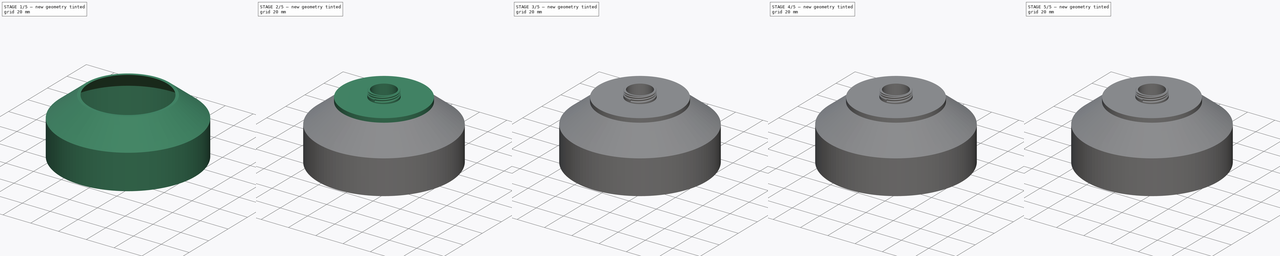
[diagram: build sequence overview — one tinted view per stage of 5, left to right]
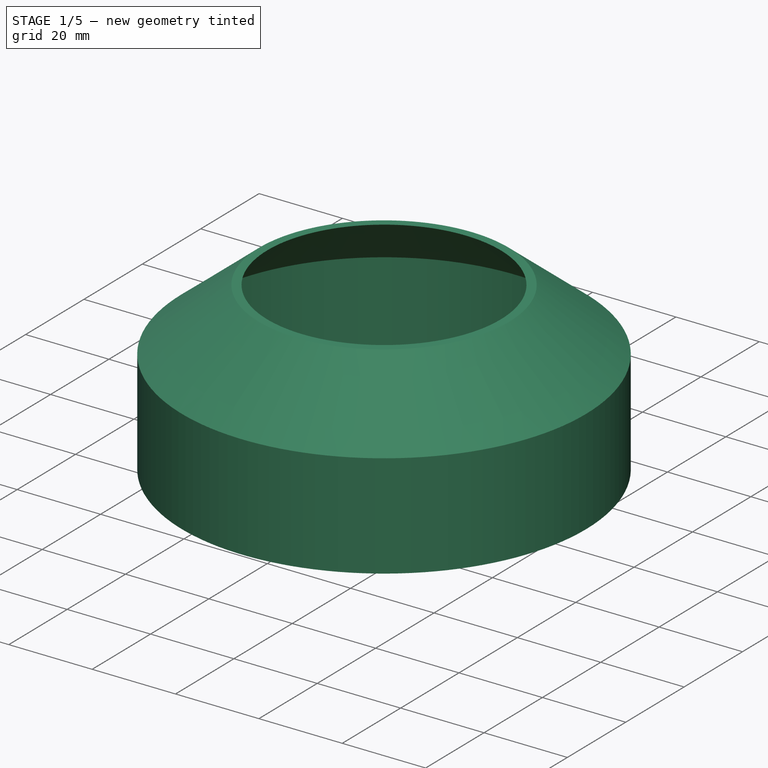
[diagram: stage 1 of 5 — iso view after this stage's code; geometry added in this stage tinted green]
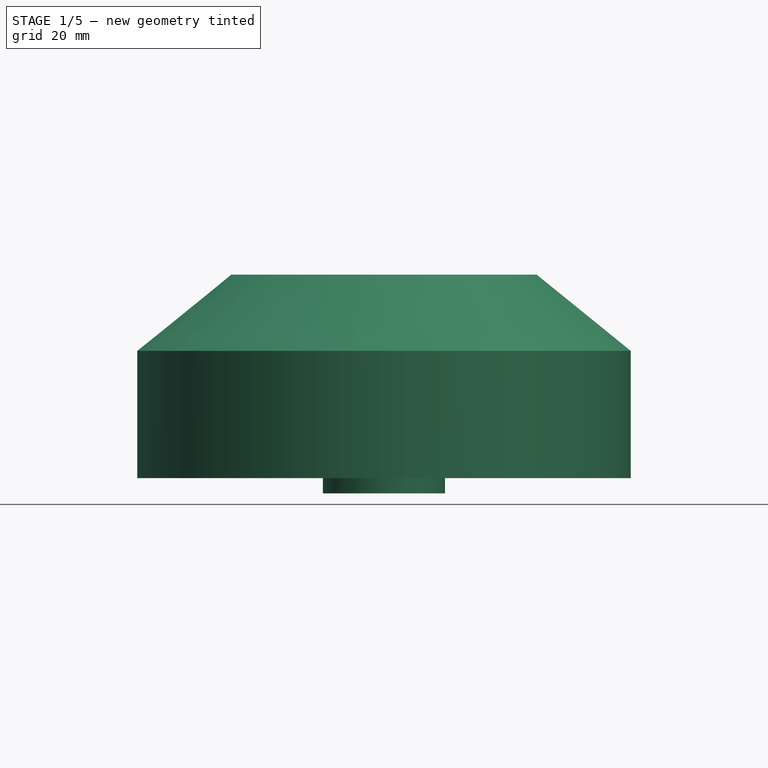
[diagram: stage 1 of 5 — front view after this stage's code; geometry added in this stage tinted green]
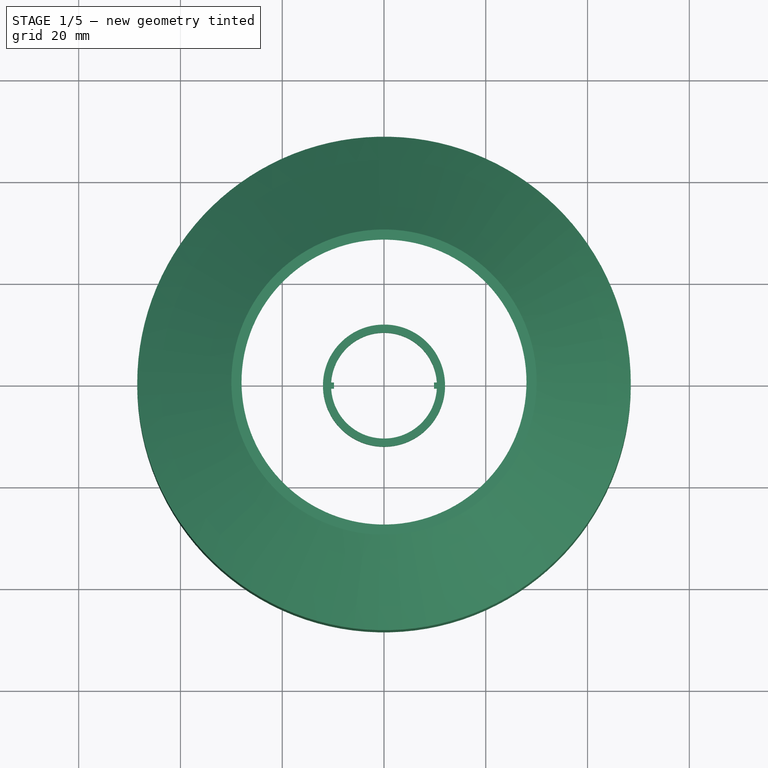
[diagram: stage 1 of 5 — top view after this stage's code; geometry added in this stage tinted green]
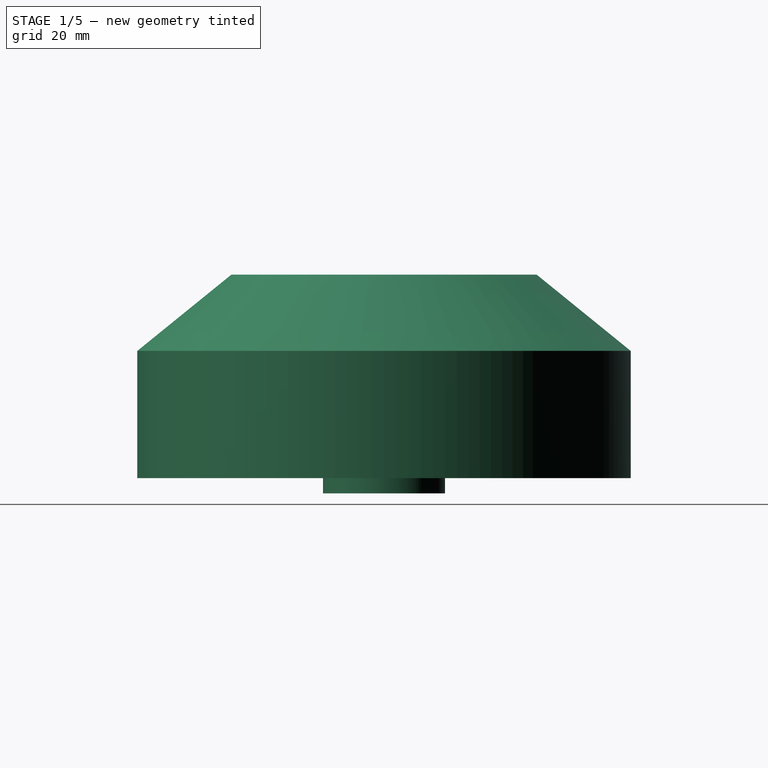
[diagram: stage 1 of 5 — right view after this stage's code; geometry added in this stage tinted green]
FCSTD DOCUMENT  (FreeCAD 0.19R24267 +99 (Git))
Label: CarbonCanister
License: All rights reserved
LicenseURL: http://en.wikipedia.org/wiki/All_rights_reserved
objects: Sketcher::SketchObject×19, PartDesign::Pocket×8, PartDesign::Pad×6, PartDesign::PolarPattern×6, PartDesign::Body×3, PartDesign::Chamfer×1, PartDesign::AdditiveLoft×1, PartDesign::SubtractiveLoft×1, PartDesign::SubtractiveHelix×1
note: 64 computed .brp shape members not serialized (recipe doc carries the construction recipe); baked Part::Feature solids carry a one-line shape summary decoded from their .brp

FEATURE [PartDesign::Body] Body
  Group = -> [Sketch,Pad,Sketch001,Pocket,Sketch003,Pocket001,PolarPattern,Sketch004,Pocket002,PolarPattern001,Sketch005,Pocket003,PolarPattern002,Sketch006,Pocket004,PolarPattern003,Sketch007,Pocket005,PolarPattern004,Sketch008,Pocket006,Chamfer]
  Origin = -> Origin
  Tip = -> Chamfer
FEATURE [Sketcher::SketchObject] Sketch009
  FullyConstrained = true
  MapMode = 5
  Support = -> [XY_Plane001]
  sketch-geometry (2):
    g0: Circle CenterX=0 CenterY=0 CenterZ=0 NormalX=0 NormalY=0 NormalZ=1 AngleXU=0 Radius=45.5
    g1: Circle CenterX=0 CenterY=0 CenterZ=0 NormalX=0 NormalY=0 NormalZ=1 AngleXU=0 Radius=48.5
  constraints (4):
    c: Coincident(g0,g-1)
    c: Radius(g0) = 45.5
    c: Radius(g1) = 48.5
    c: Coincident(g1,g0)
FEATURE [PartDesign::Pad] Pad001
  Direction = (1,1,1)
  Length = 25
  Length2 = 100
  Profile = -> Sketch009
  Type = 0
FEATURE [Sketcher::SketchObject] Sketch010
  FullyConstrained = true
  MapMode = 5
  Placement = pos=(0,0,25) rot=(0,0,1;0rad)
  Support = -> [Pad001]
  sketch-geometry (1):
    g0: Circle CenterX=0 CenterY=0 CenterZ=0 NormalX=0 NormalY=0 NormalZ=1 AngleXU=0 Radius=48.5
  constraints (2):
    c: Coincident(g0,g-1)
    c: Radius(g0) = 48.5
FEATURE [Sketcher::SketchObject] Sketch011
  AttachmentOffset = pos=(0,0,40) rot=(0,0,1;0rad)
  FullyConstrained = true
  MapMode = 5
  Placement = pos=(0,0,40) rot=(0,0,1;0rad)
  Support = -> [XY_Plane001]
  sketch-geometry (1):
    g0: Circle CenterX=0 CenterY=0 CenterZ=0 NormalX=0 NormalY=0 NormalZ=1 AngleXU=0 Radius=30
  constraints (2):
    c: Coincident(g0,g-1)
    c: Radius(g0) = 30
FEATURE [PartDesign::AdditiveLoft] AdditiveLoft
  BaseFeature = -> Pad001
  Closed = false
  Profile = -> Sketch010
  Ruled = false
  Sections = -> [Sketch011]
FEATURE [Sketcher::SketchObject] Sketch014
  ExternalGeometry = -> [AdditiveLoft]
  FullyConstrained = true
  MapMode = 5
  Placement = pos=(0,0,40) rot=(0,0,1;0rad)
  Support = -> [AdditiveLoft]
  sketch-geometry (1):
    g0: Circle CenterX=0 CenterY=0 CenterZ=0 NormalX=0 NormalY=0 NormalZ=1 AngleXU=0 Radius=28
  constraints (3):
    c: Coincident(g0,g-1)
    c: Radius(g-3) = 30
    c: Radius(g0) = 28
FEATURE [Sketcher::SketchObject] Sketch015
  FullyConstrained = true
  MapMode = 5
  Placement = pos=(0,0,25) rot=(1,0,0;3.14159rad)
  Support = -> [AdditiveLoft]
  sketch-geometry (1):
    g0: Circle CenterX=0 CenterY=0 CenterZ=0 NormalX=0 NormalY=0 NormalZ=1 AngleXU=0 Radius=45
  constraints (2):
    c: Coincident(g0,g-1)
    c: Radius(g0) = 45
FEATURE [PartDesign::SubtractiveLoft] SubtractiveLoft
  BaseFeature = -> AdditiveLoft
  Closed = false
  Profile = -> Sketch014
  Ruled = false
  Sections = -> [Sketch015]
FEATURE [PartDesign::Body] Body001
  Group = -> [Sketch009,Pad001,Sketch010,Sketch011,AdditiveLoft,Sketch014,Sketch015,SubtractiveLoft,Sketch016,Pad002,Sketch017,Pad003,Sketch018,SubtractiveHelix,PolarPattern005,Sketch019,Pocket007]
  Origin = -> Origin001
  Tip = -> Pocket007
FEATURE [Sketcher::SketchObject] Sketch020
  FullyConstrained = true
  MapMode = 5
  Support = -> [XY_Plane002]
  sketch-geometry (9):
    g0: LineSegment StartX=-10.3818 StartY=0.615 StartZ=0 EndX=-9.8318 EndY=0.615 EndZ=0
    g1: LineSegment StartX=-9.8318 StartY=0.615 StartZ=0 EndX=-9.83179 EndY=-0.615 EndZ=0
    g2: LineSegment StartX=-9.83179 StartY=-0.615 StartZ=0 EndX=-10.3818 EndY=-0.615 EndZ=0
    g3: LineSegment StartX=10.3818 StartY=0.615 StartZ=0 EndX=9.8318 EndY=0.615 EndZ=0
    g4: LineSegment StartX=9.8318 StartY=0.615 StartZ=0 EndX=9.8318 EndY=-0.615 EndZ=0
    g5: LineSegment StartX=9.8318 StartY=-0.615 StartZ=0 EndX=10.3818 EndY=-0.615 EndZ=0
    g6: ArcOfCircle CenterX=0 CenterY=0 CenterZ=0 NormalX=0 NormalY=0 NormalZ=1 AngleXU=0 Radius=10.4 StartAngle=0.0591691 EndAngle=3.08242
    g7: ArcOfCircle CenterX=0 CenterY=0 CenterZ=0 NormalX=0 NormalY=0 NormalZ=1 AngleXU=0 Radius=10.4 StartAngle=3.20076 EndAngle=6.22402
    g8: Circle CenterX=0 CenterY=0 CenterZ=0 NormalX=0 NormalY=0 NormalZ=1 AngleXU=0 Radius=12
  constraints (25):
    c: Coincident(g0,g1)
    c: Coincident(g1,g2)
    c: Horizontal(g2)
    c: Horizontal(g3)
    c: Coincident(g3,g4)
    c: Coincident(g4,g5)
    c: Horizontal(g0)
    c: Horizontal(g3,g0)
    c: Horizontal(g1,g4)
    c: Symmetric(g3,g4,g-1)
    c: Coincident(g6,g-1)
    c: Coincident(g6,g0)
    c: Coincident(g6,g3)
    c: Coincident(g7,g6)
    c: Coincident(g7,g2)
    c: Coincident(g7,g5)
    c: Equal(g1,g4)
    c: Horizontal(g5)
    c: Equal(g6,g7)
    c: Radius(g6) = 10.4
    c: Coincident(g8,g6)
    c: Radius(g8) = 12
    c: Distance(g3) = 0.55
    c: Distance(g4) = 1.23
    c: Equal(g5,g0)
FEATURE [PartDesign::Pad] Pad004
  Direction = (1,1,1)
  Length = 0.4
  Length2 = 100
  Profile = -> Sketch020
  Type = 0
FEATURE [Sketcher::SketchObject] Sketch021
  FullyConstrained = true
  MapMode = 5
  Placement = pos=(0,0,0) rot=(1,0,0;3.14159rad)
  Support = -> [Pad004]
  sketch-geometry (2):
    g0: Circle CenterX=0 CenterY=0 CenterZ=0 NormalX=0 NormalY=0 NormalZ=1 AngleXU=0 Radius=10.4
    g1: Circle CenterX=0 CenterY=0 CenterZ=0 NormalX=0 NormalY=0 NormalZ=1 AngleXU=0 Radius=12
  constraints (4):
    c: Coincident(g0,g-1)
    c: Coincident(g1,g0)
    c: Radius(g1) = 12
    c: Radius(g0) = 10.4
FEATURE [PartDesign::Pad] Pad005
  BaseFeature = -> Pad004
  Direction = (1,1,1)
  Length = 3
  Length2 = 100
  Profile = -> Sketch021
  Type = 0
FEATURE [PartDesign::Body] Body002
  Group = -> [Sketch020,Pad004,Sketch021,Pad005]
  Origin = -> Origin002
  Tip = -> Pad005
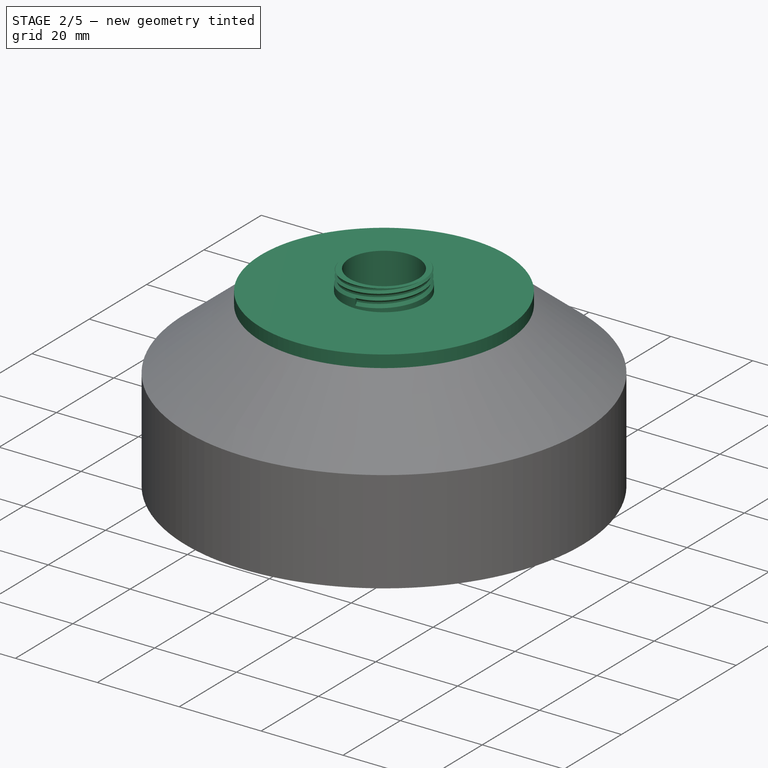
[diagram: stage 2 of 5 — iso view after this stage's code; geometry added in this stage tinted green]
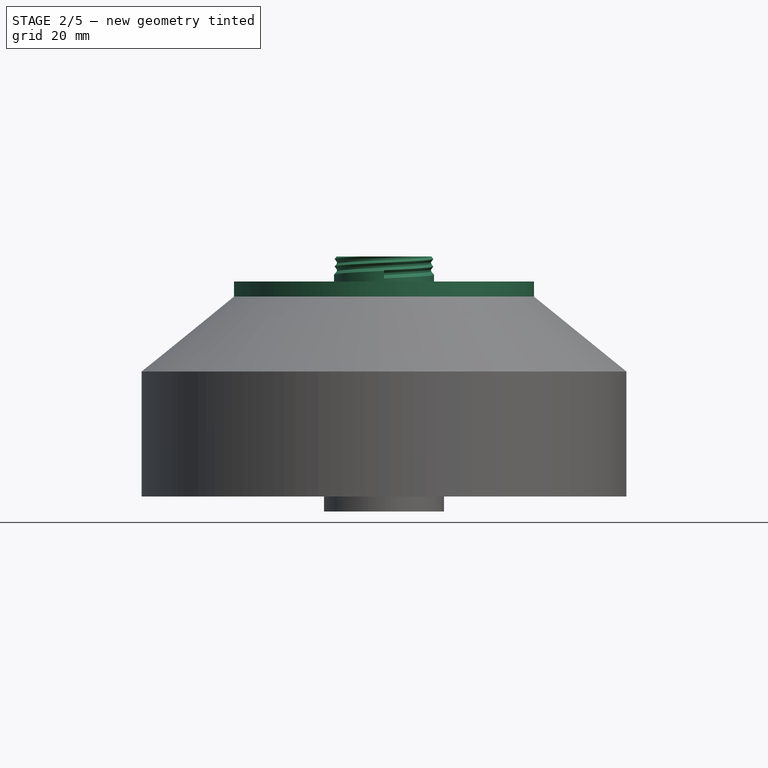
[diagram: stage 2 of 5 — front view after this stage's code; geometry added in this stage tinted green]
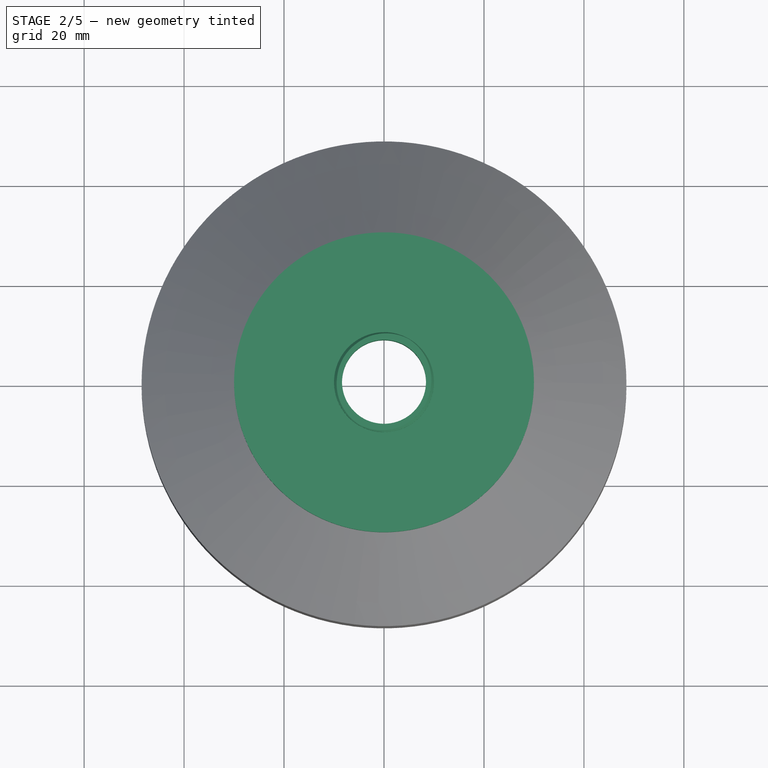
[diagram: stage 2 of 5 — top view after this stage's code; geometry added in this stage tinted green]
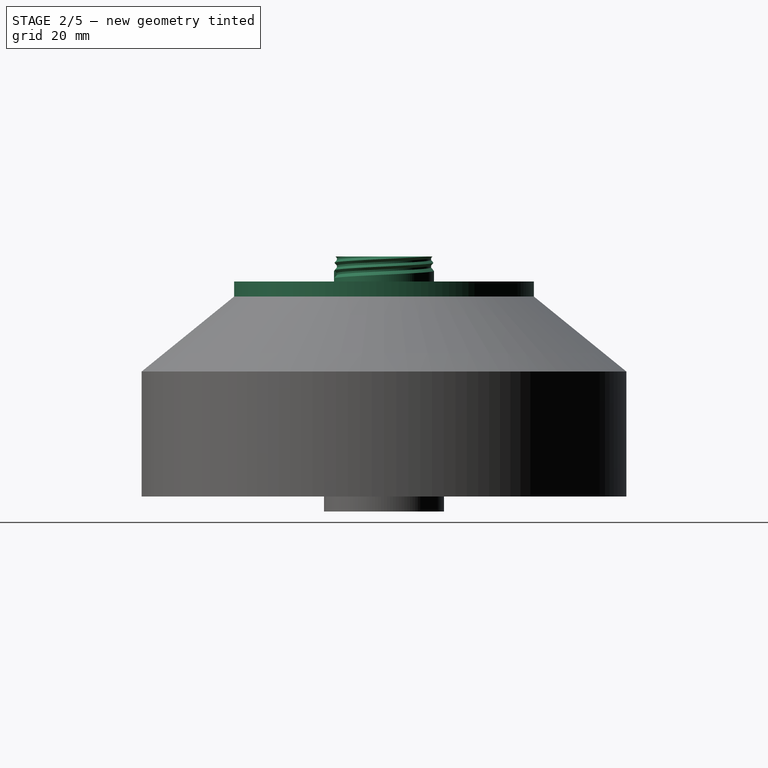
[diagram: stage 2 of 5 — right view after this stage's code; geometry added in this stage tinted green]
FEATURE [Sketcher::SketchObject] Sketch016
  FullyConstrained = true
  MapMode = 5
  Placement = pos=(0,0,40) rot=(0,0,1;0rad)
  Support = -> [SubtractiveLoft]
  sketch-geometry (1):
    g0: Circle CenterX=0 CenterY=0 CenterZ=0 NormalX=0 NormalY=0 NormalZ=1 AngleXU=0 Radius=30
  constraints (2):
    c: Coincident(g0,g-1)
    c: Radius(g0) = 30
FEATURE [PartDesign::Pad] Pad002
  BaseFeature = -> SubtractiveLoft
  Direction = (1,1,1)
  Length = 3
  Length2 = 100
  Profile = -> Sketch016
  Type = 0
FEATURE [Sketcher::SketchObject] Sketch017
  FullyConstrained = true
  MapMode = 5
  Placement = pos=(0,0,43) rot=(0,0,1;0rad)
  Support = -> [Pad002]
  sketch-geometry (1):
    g0: Circle CenterX=0 CenterY=0 CenterZ=0 NormalX=0 NormalY=0 NormalZ=1 AngleXU=0 Radius=10
  constraints (2):
    c: Coincident(g0,g-1)
    c: Radius(g0) = 10
FEATURE [PartDesign::Pad] Pad003
  BaseFeature = -> Pad002
  Direction = (1,1,1)
  Length = 5
  Length2 = 100
  Profile = -> Sketch017
  Type = 0
FEATURE [Sketcher::SketchObject] Sketch018
  ExternalGeometry = -> [Pad003]
  FullyConstrained = true
  MapMode = 5
  Placement = pos=(0,0,0) rot=(0.57735,0.57735,0.57735;2.0944rad)
  Support = -> [YZ_Plane001]
  sketch-geometry (4):
    g0: LineSegment StartX=10.1 StartY=45.5 StartZ=0 EndX=9.42872 EndY=44.7 EndZ=0
    g1: LineSegment StartX=9.42872 StartY=44.7 StartZ=0 EndX=9.42872 EndY=44.3 EndZ=0
    g2: LineSegment StartX=9.42872 StartY=44.3 StartZ=0 EndX=10.1 EndY=43.5 EndZ=0
    g3: LineSegment StartX=10.1 StartY=43.5 StartZ=0 EndX=10.1 EndY=45.5 EndZ=0
  constraints (12):
    c: Coincident(g0,g1)
    c: Vertical(g1)
    c: Coincident(g1,g2)
    c: Vertical(g3)
    c: Angle(g0,g3) = 0.698132
    c: Angle(g3,g2) = 0.698132
    c: Distance(g1) = 0.4
    c: Distance(g3) = 2
    c: Coincident(g0,g3)
    c: Coincident(g2,g3)
    c: DistanceX(g-3,g2) = 0.1
    c: DistanceY(g-3,g2) = 0.5
FEATURE [PartDesign::SubtractiveHelix] SubtractiveHelix
  Angle = 0
  Axis = (-2e-16,3e-16,1)
  Base = (0,0,0)
  BaseFeature = -> Pad003
  HasBeenEdited = true
  Height = 5
  LeftHanded = false
  Mode = 0
  Outside = false
  Pitch = 3
  Profile = -> Sketch018
  ReferenceAxis = -> Sketch018 [V_Axis]
  Turns = 1.66667
FEATURE [PartDesign::PolarPattern] PolarPattern005
  Angle = 360
  Axis = -> Z_Axis001
  BaseFeature = -> SubtractiveHelix
  Occurrences = 2
  Originals = -> [SubtractiveHelix]
FEATURE [Sketcher::SketchObject] Sketch019
  FullyConstrained = true
  MapMode = 5
  Placement = pos=(0,0,48) rot=(0,0,1;0rad)
  Support = -> [PolarPattern005]
  sketch-geometry (1):
    g0: Circle CenterX=0 CenterY=0 CenterZ=0 NormalX=0 NormalY=0 NormalZ=1 AngleXU=0 Radius=8.4
  constraints (2):
    c: Coincident(g0,g-1)
    c: Radius(g0) = 8.4
FEATURE [PartDesign::Pocket] Pocket007
  BaseFeature = -> PolarPattern005
  Length = 12
  Length2 = 100
  Profile = -> Sketch019
  Type = 0
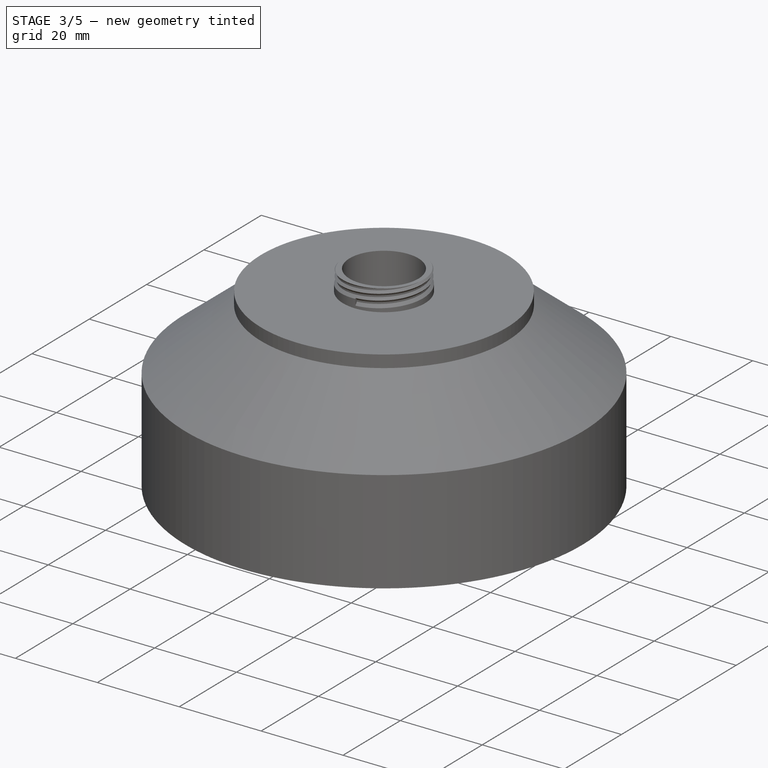
[diagram: stage 3 of 5 — iso view after this stage's code; geometry added in this stage tinted green]
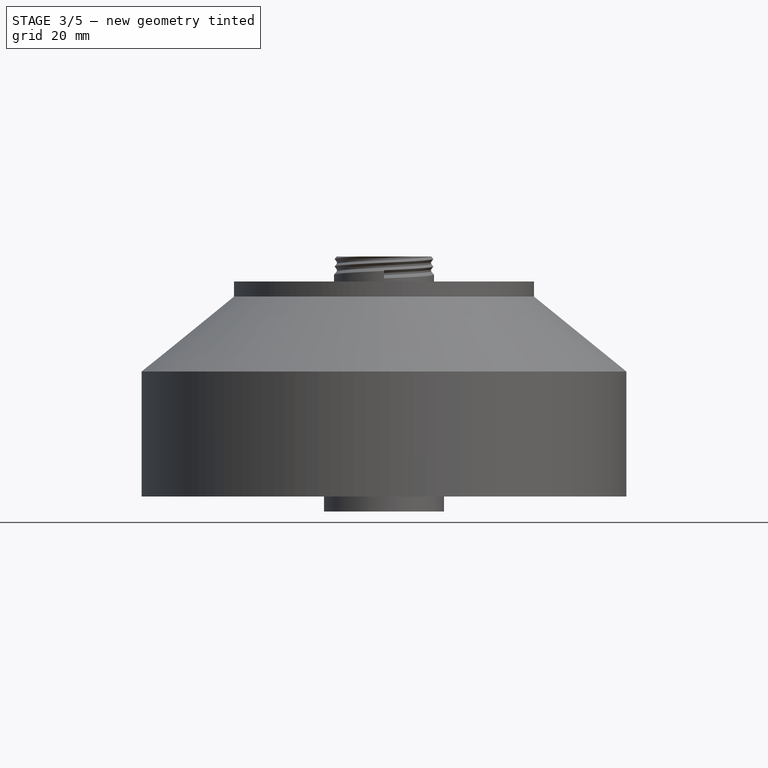
[diagram: stage 3 of 5 — front view after this stage's code; geometry added in this stage tinted green]
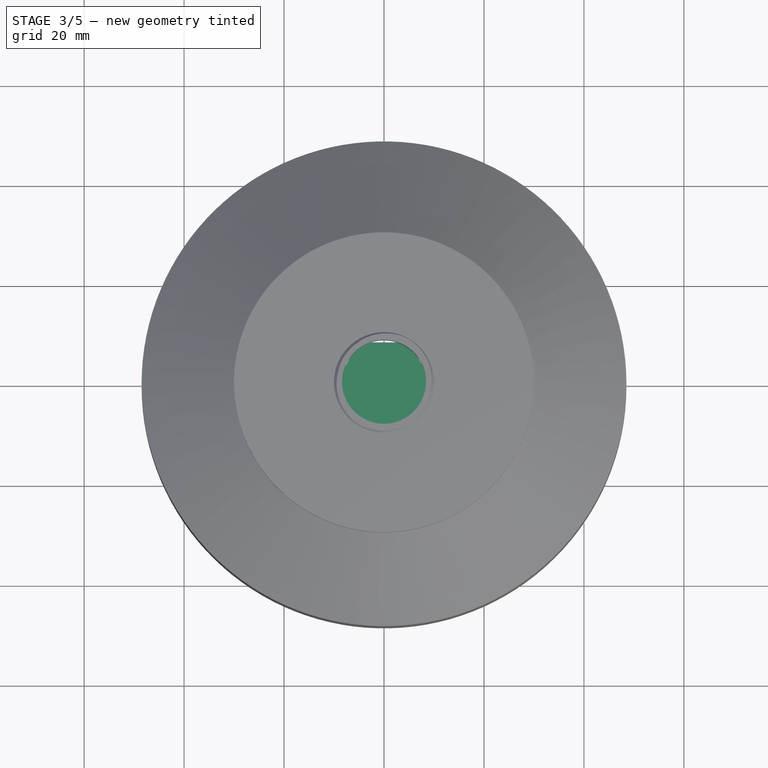
[diagram: stage 3 of 5 — top view after this stage's code; geometry added in this stage tinted green]
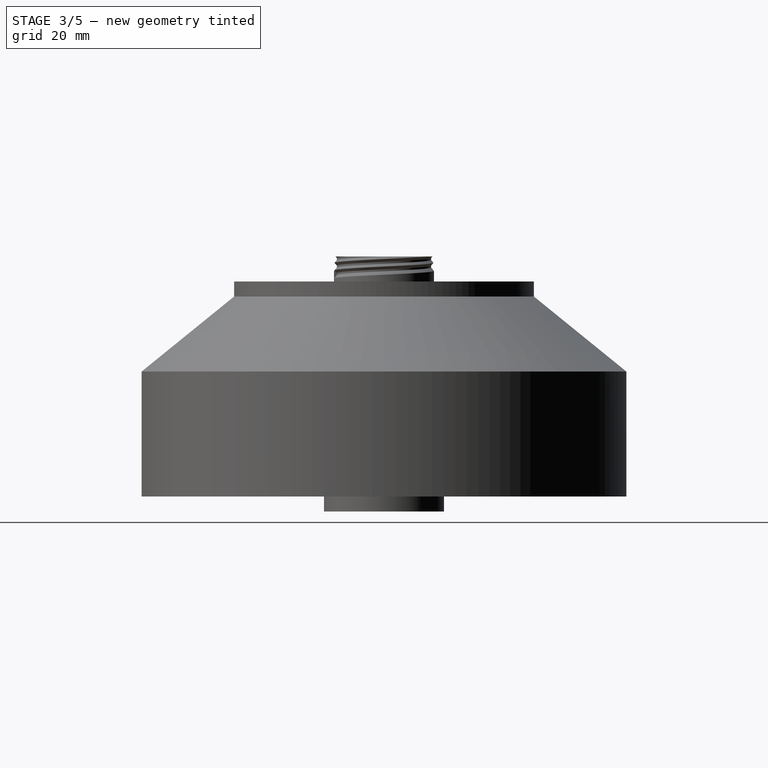
[diagram: stage 3 of 5 — right view after this stage's code; geometry added in this stage tinted green]
FEATURE [Sketcher::SketchObject] Sketch
  FullyConstrained = true
  MapMode = 5
  Support = -> [XY_Plane]
  sketch-geometry (1):
    g0: Circle CenterX=0 CenterY=0 CenterZ=0 NormalX=0 NormalY=0 NormalZ=1 AngleXU=0 Radius=45
  constraints (2):
    c: Coincident(g0,g-1)
    c: Radius(g0) = 45
FEATURE [PartDesign::Pad] Pad
  Direction = (1,1,1)
  Length = 20
  Length2 = 100
  Profile = -> Sketch
  Type = 0
FEATURE [Sketcher::SketchObject] Sketch001
  FullyConstrained = true
  MapMode = 5
  Placement = pos=(0,0,20) rot=(0,0,1;0rad)
  Support = -> [Pad]
  sketch-geometry (1):
    g0: Circle CenterX=0 CenterY=0 CenterZ=0 NormalX=0 NormalY=0 NormalZ=1 AngleXU=0 Radius=42
  constraints (2):
    c: Coincident(g0,g-1)
    c: Radius(g0) = 42
FEATURE [PartDesign::Pocket] Pocket
  BaseFeature = -> Pad
  Length = 17
  Length2 = 100
  Profile = -> Sketch001
  Type = 0
FEATURE [Sketcher::SketchObject] Sketch003
  FullyConstrained = true
  MapMode = 5
  Placement = pos=(0,0,3) rot=(0,0,1;0rad)
  Support = -> [Pocket]
  sketch-geometry (14):
    g0: LineSegment StartX=11.2583 StartY=-6.5 StartZ=0 EndX=11.2583 EndY=6.5 EndZ=0
    g1: LineSegment StartX=11.2583 StartY=6.5 StartZ=0 EndX=0 EndY=13 EndZ=0
    g2: LineSegment StartX=0 StartY=13 StartZ=0 EndX=-11.2583 EndY=6.5 EndZ=0
    g3: LineSegment StartX=-11.2583 StartY=6.5 StartZ=0 EndX=-11.2583 EndY=-6.5 EndZ=0
    g4: LineSegment StartX=-11.2583 StartY=-6.5 StartZ=0 EndX=0 EndY=-13 EndZ=0
    g5: LineSegment StartX=4e-16 StartY=-13 StartZ=0 EndX=11.2583 EndY=-6.5 EndZ=0
    g6: Circle CenterX=0 CenterY=0 CenterZ=0 NormalX=0 NormalY=0 NormalZ=1 AngleXU=0 Radius=13
    g7: LineSegment StartX=-6.25833 StartY=6.5 StartZ=0 EndX=-8.75833 EndY=10.8301 EndZ=0
    g8: LineSegment StartX=-8.75833 StartY=10.8301 StartZ=0 EndX=-13.7583 EndY=10.8301 EndZ=0
    g9: LineSegment StartX=-13.7583 StartY=10.8301 StartZ=0 EndX=-16.2583 EndY=6.5 EndZ=0
    g10: LineSegment StartX=-16.2583 StartY=6.5 StartZ=0 EndX=-13.7583 EndY=2.16987 EndZ=0
    g11: LineSegment StartX=-13.7583 StartY=2.16987 StartZ=0 EndX=-8.75833 EndY=2.16987 EndZ=0
    g12: LineSegment StartX=-8.75833 StartY=2.16987 StartZ=0 EndX=-6.25833 EndY=6.5 EndZ=0
    g13: Circle CenterX=-11.2583 CenterY=6.5 CenterZ=0 NormalX=0 NormalY=0 NormalZ=1 AngleXU=0 Radius=5
  constraints (32):
    c: Coincident(g0,g1)
    c: Coincident(g1,g2)
    c: Coincident(g2,g3)
    c: Coincident(g3,g4)
    c: Coincident(g4,g5)
    c: Coincident(g5,g0)
    c: Equal(g0, g1-g5) x5
    c: PointOnObject(g0,g6)
    c: PointOnObject(g1,g6)
    c: PointOnObject(g2,g6)
    c: PointOnObject(g3,g6)
    c: PointOnObject(g4,g6)
    c: PointOnObject(g5,g6)
    c: Coincident(g6,g-1)
    c: Vertical(g0)
    c: Coincident(g7,g8)
    c: Coincident(g8,g9)
    c: Coincident(g9,g10)
    c: Coincident(g10,g11)
    c: Coincident(g11,g12)
    c: Coincident(g12,g7)
    c: Equal(g7, g8-g12) x5
    c: PointOnObject(g7,g13)
    c: PointOnObject(g8,g13)
    c: PointOnObject(g9,g13)
    c: PointOnObject(g10,g13)
    c: PointOnObject(g11,g13)
    c: PointOnObject(g12,g13)
    c: Coincident(g13,g2)
    c: Horizontal(g8)
    c: Distance(g8) = 5
    c: Distance(g2) = 13
FEATURE [PartDesign::Pocket] Pocket001
  BaseFeature = -> Pocket
  Length = 5
  Length2 = 100
  Profile = -> Sketch003
  Type = 0
FEATURE [PartDesign::PolarPattern] PolarPattern
  Angle = 360
  Axis = -> Sketch003 [N_Axis]
  BaseFeature = -> Pocket001
  Occurrences = 6
  Originals = -> [Pocket001]
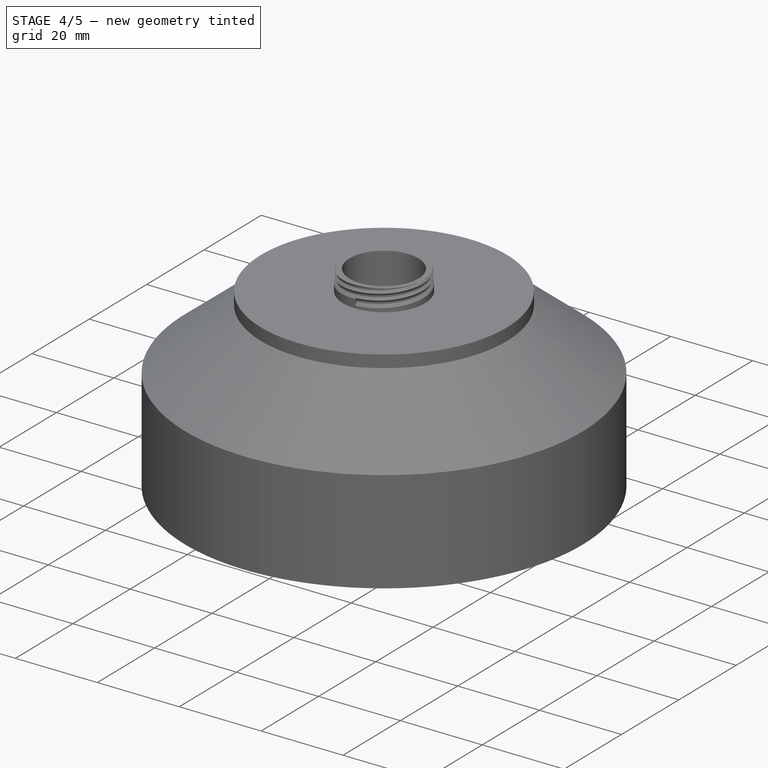
[diagram: stage 4 of 5 — iso view after this stage's code; geometry added in this stage tinted green]
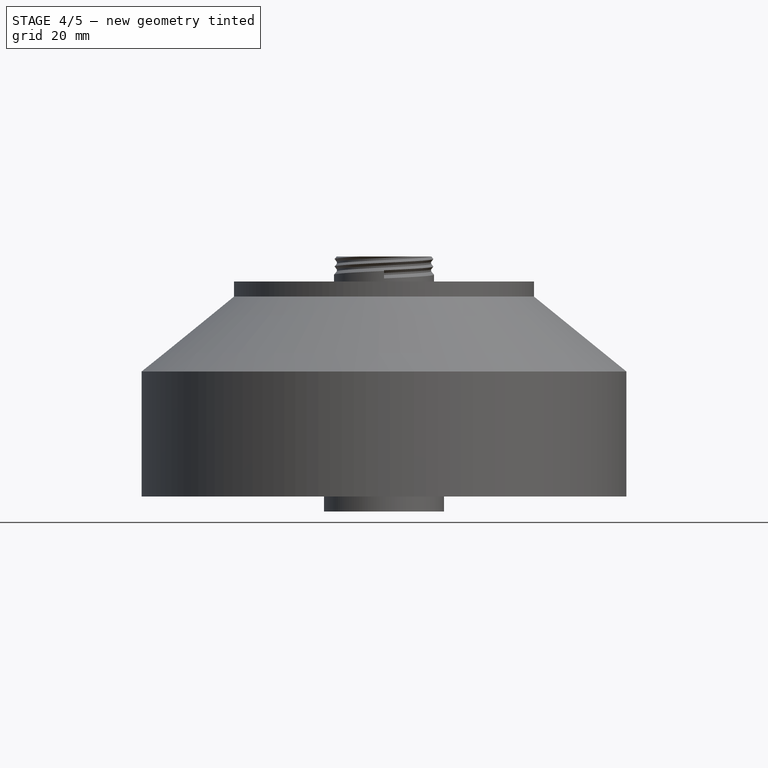
[diagram: stage 4 of 5 — front view after this stage's code; geometry added in this stage tinted green]
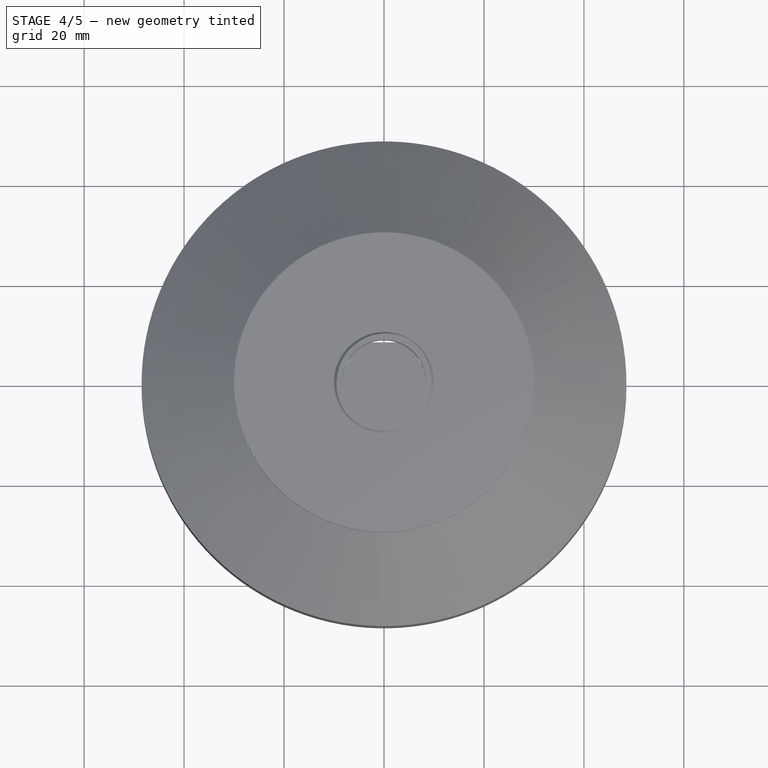
[diagram: stage 4 of 5 — top view after this stage's code; geometry added in this stage tinted green]
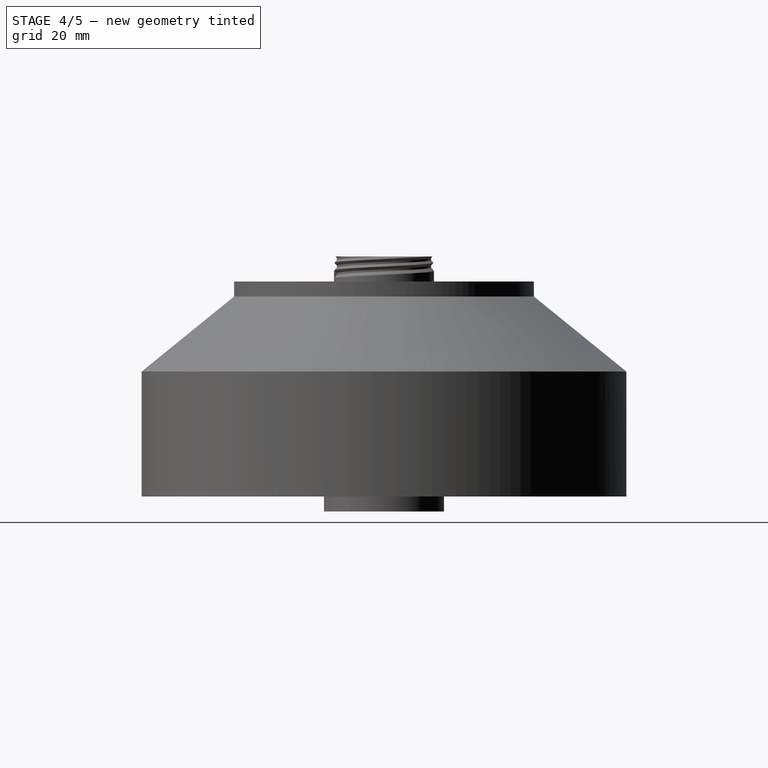
[diagram: stage 4 of 5 — right view after this stage's code; geometry added in this stage tinted green]
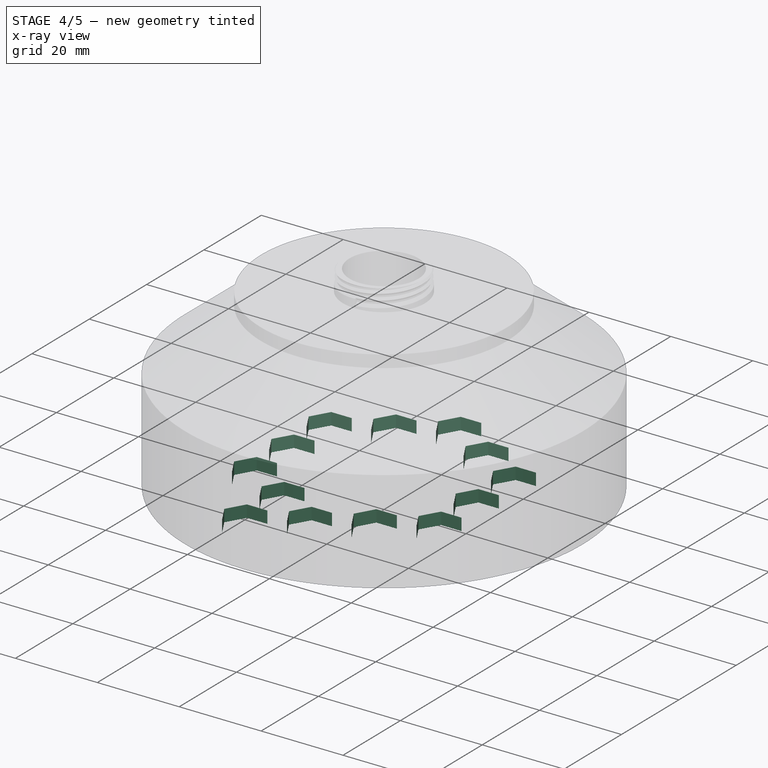
[diagram: stage 4 of 5 — x-ray composite at the iso view; earlier geometry ghosted, this stage's added geometry solid]
FEATURE [Sketcher::SketchObject] Sketch004
  ExternalGeometry = -> [PolarPattern]
  FullyConstrained = true
  MapMode = 5
  Placement = pos=(0,0,3) rot=(0,0,1;0rad)
  Support = -> [PolarPattern]
  sketch-geometry (10):
    g0: LineSegment StartX=13.7583 StartY=-23.8301 StartZ=0 EndX=16.2583 EndY=-19.5 EndZ=0
    g1: LineSegment StartX=16.2583 StartY=-19.5 StartZ=0 EndX=13.7583 EndY=-15.1699 EndZ=0
    g2: LineSegment StartX=13.7583 StartY=-15.1699 StartZ=0 EndX=8.75833 EndY=-15.1699 EndZ=0
    g3: LineSegment StartX=8.75833 StartY=-15.1699 StartZ=0 EndX=6.25833 EndY=-19.5 EndZ=0
    g4: LineSegment StartX=6.25833 StartY=-19.5 StartZ=0 EndX=8.75833 EndY=-23.8301 EndZ=0
    g5: LineSegment StartX=8.75833 StartY=-23.8301 StartZ=0 EndX=13.7583 EndY=-23.8301 EndZ=0
    g6: Circle CenterX=11.2583 CenterY=-19.5 CenterZ=0 NormalX=0 NormalY=0 NormalZ=1 AngleXU=0 Radius=5
    g7: LineSegment StartX=8.75833 StartY=-10.8301 StartZ=0 EndX=5 EndY=-13 EndZ=0
    g8: LineSegment StartX=8.75833 StartY=-10.8301 StartZ=0 EndX=8.75833 EndY=-15.1699 EndZ=0
    g9: LineSegment StartX=8.75833 StartY=-15.1699 StartZ=0 EndX=5 EndY=-13 EndZ=0
  constraints (23):
    c: Coincident(g0,g1)
    c: Coincident(g1,g2)
    c: Coincident(g2,g3)
    c: Coincident(g3,g4)
    c: Coincident(g4,g5)
    c: Coincident(g5,g0)
    c: Equal(g0, g1-g5) x5
    c: PointOnObject(g0,g6)
    c: PointOnObject(g1,g6)
    c: PointOnObject(g2,g6)
    c: PointOnObject(g3,g6)
    c: PointOnObject(g4,g6)
    c: PointOnObject(g5,g6)
    c: Horizontal(g2)
    c: Equal(g-3,g2)
    c: Coincident(g7,g-3)
    c: Coincident(g7,g-4)
    c: Coincident(g8,g7)
    c: Coincident(g8,g2)
    c: Coincident(g9,g7)
    c: Equal(g7,g8)
    c: Equal(g7,g9)
    c: Coincident(g2,g9)
FEATURE [PartDesign::Pocket] Pocket002
  BaseFeature = -> PolarPattern
  Length = 5
  Length2 = 100
  Profile = -> Sketch004
  Type = 0
FEATURE [PartDesign::PolarPattern] PolarPattern001
  Angle = 360
  Axis = -> Sketch004 [N_Axis]
  BaseFeature = -> Pocket002
  Occurrences = 6
  Originals = -> [Pocket002]
FEATURE [Sketcher::SketchObject] Sketch005
  ExternalGeometry = -> [PolarPattern001]
  FullyConstrained = true
  MapMode = 5
  Placement = pos=(0,0,3) rot=(0,0,1;0rad)
  Support = -> [PolarPattern001]
  sketch-geometry (10):
    g0: LineSegment StartX=-6.25833 StartY=-19.5 StartZ=0 EndX=-2.5 EndY=-21.6699 EndZ=0
    g1: LineSegment StartX=-2.5 StartY=-21.6699 StartZ=0 EndX=-2.5 EndY=-17.3301 EndZ=0
    g2: LineSegment StartX=-2.5 StartY=-17.3301 StartZ=0 EndX=-6.25833 EndY=-19.5 EndZ=0
    g3: LineSegment StartX=2.5 StartY=-30.3301 StartZ=0 EndX=5 EndY=-26 EndZ=0
    g4: LineSegment StartX=5 StartY=-26 StartZ=0 EndX=2.5 EndY=-21.6699 EndZ=0
    g5: LineSegment StartX=2.5 StartY=-21.6699 StartZ=0 EndX=-2.5 EndY=-21.6699 EndZ=0
    g6: LineSegment StartX=-2.5 StartY=-21.6699 StartZ=0 EndX=-5 EndY=-26 EndZ=0
    g7: LineSegment StartX=-5 StartY=-26 StartZ=0 EndX=-2.5 EndY=-30.3301 EndZ=0
    g8: LineSegment StartX=-2.5 StartY=-30.3301 StartZ=0 EndX=2.5 EndY=-30.3301 EndZ=0
    g9: Circle CenterX=-4.1459e-11 CenterY=-26 CenterZ=0 NormalX=0 NormalY=0 NormalZ=1 AngleXU=0 Radius=5
  constraints (23):
    c: Coincident(g-4,g0)
    c: Coincident(g0,g1)
    c: Coincident(g1,g-3)
    c: Coincident(g1,g2)
    c: Coincident(g2,g0)
    c: Equal(g2,g1)
    c: Equal(g0,g2)
    c: Coincident(g3,g4)
    c: Coincident(g4,g5)
    c: Coincident(g5,g6)
    c: Coincident(g6,g7)
    c: Coincident(g7,g8)
    c: Coincident(g8,g3)
    c: Equal(g3, g4-g8) x5
    c: PointOnObject(g3,g9)
    c: PointOnObject(g4,g9)
    c: PointOnObject(g5,g9)
    c: PointOnObject(g6,g9)
    c: PointOnObject(g7,g9)
    c: PointOnObject(g8,g9)
    c: Coincident(g5,g0)
    c: Horizontal(g5)
    c: Equal(g-3,g5)
FEATURE [PartDesign::Pocket] Pocket003
  BaseFeature = -> PolarPattern001
  Length = 5
  Length2 = 100
  Profile = -> Sketch005
  Type = 0
FEATURE [PartDesign::PolarPattern] PolarPattern002
  Angle = 360
  Axis = -> Sketch005 [N_Axis]
  BaseFeature = -> Pocket003
  Occurrences = 6
  Originals = -> [Pocket003]
FEATURE [Sketcher::SketchObject] Sketch006
  ExternalGeometry = -> [PolarPattern002]
  FullyConstrained = true
  MapMode = 5
  Placement = pos=(0,0,3) rot=(0,0,1;0rad)
  Support = -> [PolarPattern002]
  sketch-geometry (10):
    g0: LineSegment StartX=-8.75833 StartY=-23.8301 StartZ=0 EndX=-5 EndY=-26 EndZ=0
    g1: LineSegment StartX=-5 StartY=-26 StartZ=0 EndX=-8.75833 EndY=-28.1699 EndZ=0
    g2: LineSegment StartX=-8.75833 StartY=-28.1699 StartZ=0 EndX=-8.75833 EndY=-23.8301 EndZ=0
    g3: LineSegment StartX=-8.75833 StartY=-36.8301 StartZ=0 EndX=-6.25833 EndY=-32.5 EndZ=0
    g4: LineSegment StartX=-6.25833 StartY=-32.5 StartZ=0 EndX=-8.75833 EndY=-28.1699 EndZ=0
    g5: LineSegment StartX=-8.75833 StartY=-28.1699 StartZ=0 EndX=-13.7583 EndY=-28.1699 EndZ=0
    g6: LineSegment StartX=-13.7583 StartY=-28.1699 StartZ=0 EndX=-16.2583 EndY=-32.5 EndZ=0
    g7: LineSegment StartX=-16.2583 StartY=-32.5 StartZ=0 EndX=-13.7583 EndY=-36.8301 EndZ=0
    g8: LineSegment StartX=-13.7583 StartY=-36.8301 StartZ=0 EndX=-8.75833 EndY=-36.8301 EndZ=0
    g9: Circle CenterX=-11.2583 CenterY=-32.5 CenterZ=0 NormalX=0 NormalY=0 NormalZ=1 AngleXU=0 Radius=5
  constraints (23):
    c: Coincident(g-3,g0)
    c: Coincident(g0,g-4)
    c: Coincident(g0,g1)
    c: Coincident(g1,g2)
    c: Coincident(g2,g0)
    c: Equal(g0,g2)
    c: Equal(g0,g1)
    c: Coincident(g3,g4)
    c: Coincident(g4,g5)
    c: Coincident(g5,g6)
    c: Coincident(g6,g7)
    c: Coincident(g7,g8)
    c: Coincident(g8,g3)
    c: Equal(g3, g4-g8) x5
    c: PointOnObject(g3,g9)
    c: PointOnObject(g4,g9)
    c: PointOnObject(g5,g9)
    c: PointOnObject(g6,g9)
    c: PointOnObject(g7,g9)
    c: PointOnObject(g8,g9)
    c: Horizontal(g5)
    c: Equal(g-3,g5)
    c: Coincident(g4,g1)
FEATURE [PartDesign::Pocket] Pocket004
  BaseFeature = -> PolarPattern002
  Length = 5
  Length2 = 100
  Profile = -> Sketch006
  Type = 0
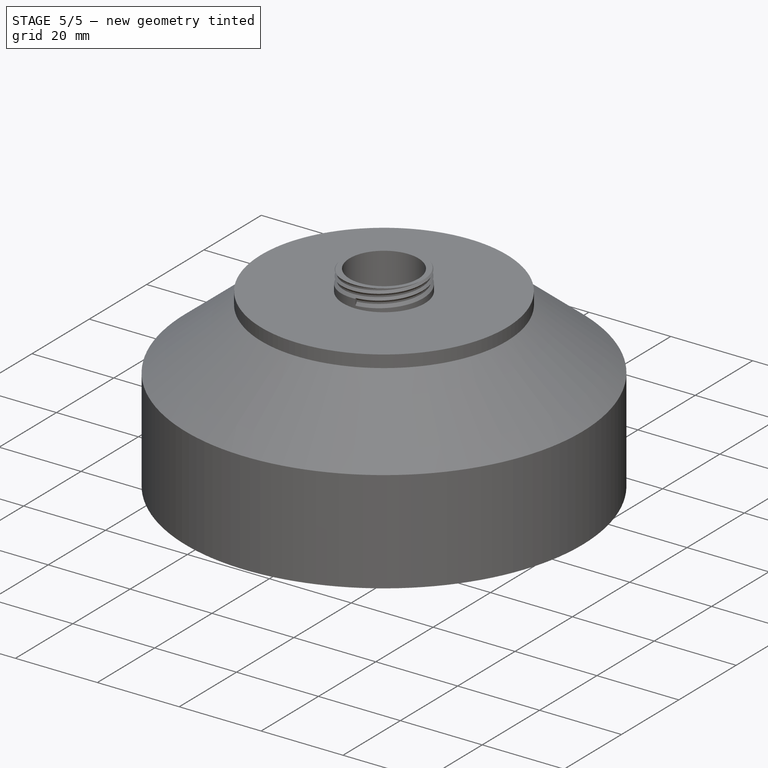
[diagram: stage 5 of 5 — iso view after this stage's code; geometry added in this stage tinted green]
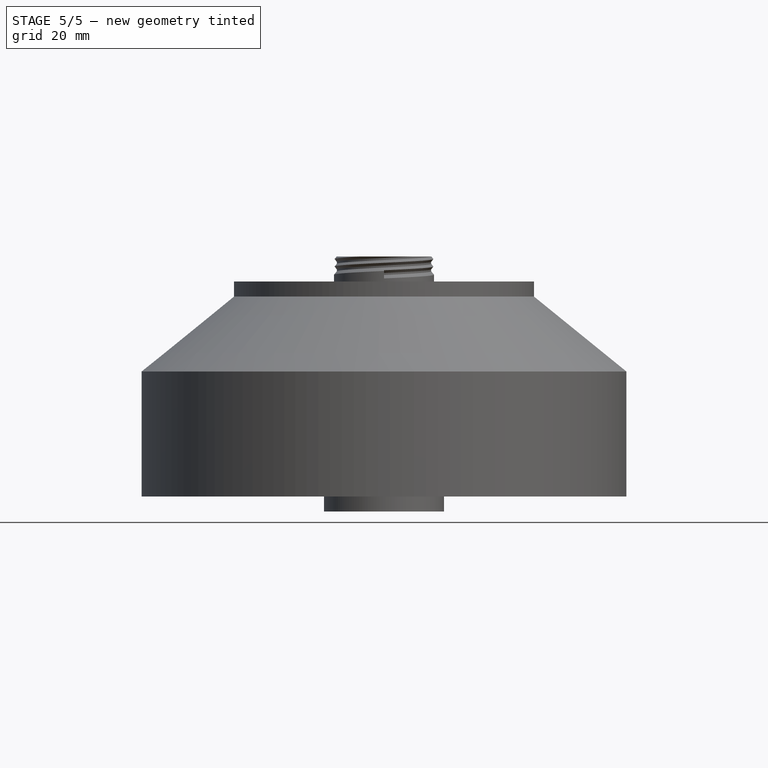
[diagram: stage 5 of 5 — front view after this stage's code; geometry added in this stage tinted green]
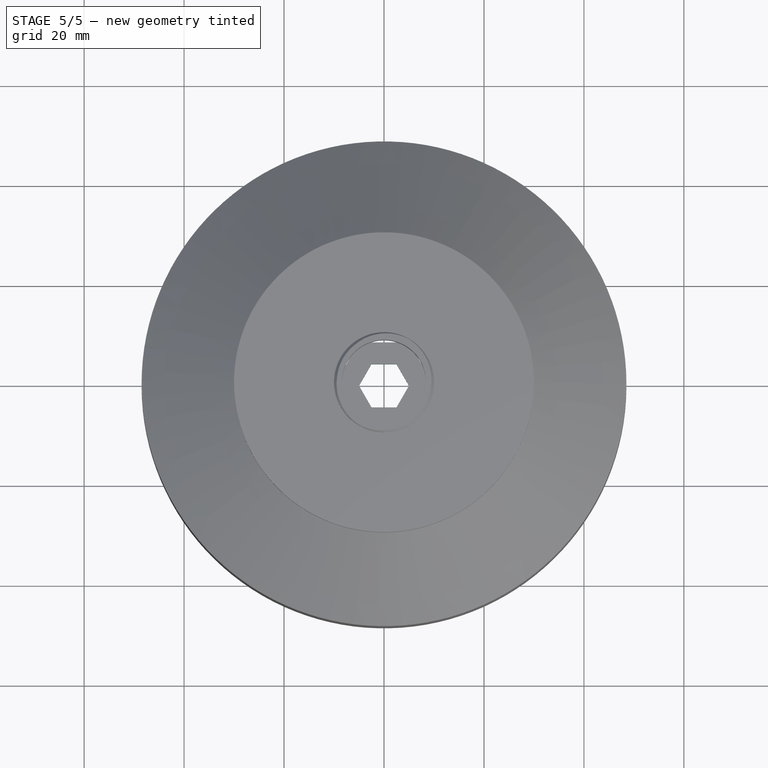
[diagram: stage 5 of 5 — top view after this stage's code; geometry added in this stage tinted green]
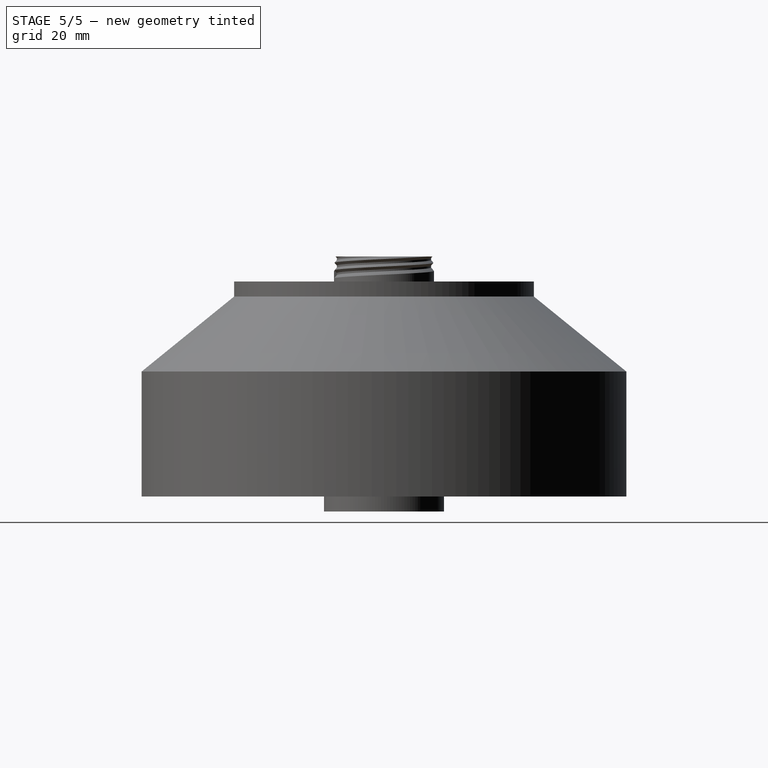
[diagram: stage 5 of 5 — right view after this stage's code; geometry added in this stage tinted green]
FEATURE [PartDesign::PolarPattern] PolarPattern003
  Angle = 360
  Axis = -> Sketch006 [N_Axis]
  BaseFeature = -> Pocket004
  Occurrences = 6
  Originals = -> [Pocket004]
FEATURE [Sketcher::SketchObject] Sketch007
  ExternalGeometry = -> [PolarPattern003]
  FullyConstrained = true
  MapMode = 5
  Placement = pos=(0,0,3) rot=(0,0,1;0rad)
  Support = -> [PolarPattern003]
  sketch-geometry (10):
    g0: LineSegment StartX=13.7583 StartY=-36.8301 StartZ=0 EndX=16.2583 EndY=-32.5 EndZ=0
    g1: LineSegment StartX=16.2583 StartY=-32.5 StartZ=0 EndX=13.7583 EndY=-28.1699 EndZ=0
    g2: LineSegment StartX=13.7583 StartY=-28.1699 StartZ=0 EndX=8.75833 EndY=-28.1699 EndZ=0
    g3: LineSegment StartX=8.75833 StartY=-28.1699 StartZ=0 EndX=6.25833 EndY=-32.5 EndZ=0
    g4: LineSegment StartX=6.25833 StartY=-32.5 StartZ=0 EndX=8.75833 EndY=-36.8301 EndZ=0
    g5: LineSegment StartX=8.75833 StartY=-36.8301 StartZ=0 EndX=13.7583 EndY=-36.8301 EndZ=0
    g6: Circle CenterX=11.2583 CenterY=-32.5 CenterZ=0 NormalX=0 NormalY=0 NormalZ=1 AngleXU=0 Radius=5
    g7: LineSegment StartX=8.75833 StartY=-23.8301 StartZ=0 EndX=8.75833 EndY=-28.1699 EndZ=0
    g8: LineSegment StartX=5 StartY=-26 StartZ=0 EndX=8.75833 EndY=-28.1699 EndZ=0
    g9: LineSegment StartX=5 StartY=-26 StartZ=0 EndX=8.75833 EndY=-23.8301 EndZ=0
  constraints (23):
    c: Coincident(g0,g1)
    c: Coincident(g1,g2)
    c: Coincident(g2,g3)
    c: Coincident(g3,g4)
    c: Coincident(g4,g5)
    c: Coincident(g5,g0)
    c: Equal(g0, g1-g5) x5
    c: PointOnObject(g0,g6)
    c: PointOnObject(g1,g6)
    c: PointOnObject(g2,g6)
    c: PointOnObject(g3,g6)
    c: PointOnObject(g4,g6)
    c: PointOnObject(g5,g6)
    c: Equal(g-3,g2)
    c: Horizontal(g2)
    c: Coincident(g7,g-3)
    c: Coincident(g7,g2)
    c: Coincident(g8,g-4)
    c: Coincident(g8,g2)
    c: Coincident(g9,g8)
    c: Coincident(g9,g7)
    c: Equal(g9,g7)
    c: Equal(g9,g8)
FEATURE [PartDesign::Pocket] Pocket005
  BaseFeature = -> PolarPattern003
  Length = 5
  Length2 = 100
  Profile = -> Sketch007
  Type = 0
FEATURE [PartDesign::PolarPattern] PolarPattern004
  Angle = 360
  Axis = -> Sketch007 [N_Axis]
  BaseFeature = -> Pocket005
  Occurrences = 6
  Originals = -> [Pocket005]
FEATURE [Sketcher::SketchObject] Sketch008
  ExternalGeometry = -> [PolarPattern004]
  FullyConstrained = true
  MapMode = 5
  Placement = pos=(0,0,3) rot=(0,0,1;0rad)
  Support = -> [PolarPattern004]
  sketch-geometry (7):
    g0: LineSegment StartX=2.5 StartY=-4.33013 StartZ=0 EndX=5 EndY=3.41522e-11 EndZ=0
    g1: LineSegment StartX=5 StartY=3.41523e-11 StartZ=0 EndX=2.5 EndY=4.33013 EndZ=0
    g2: LineSegment StartX=2.5 StartY=4.33013 StartZ=0 EndX=-2.5 EndY=4.33013 EndZ=0
    g3: LineSegment StartX=-2.5 StartY=4.33013 StartZ=0 EndX=-5 EndY=-2.53246e-11 EndZ=0
    g4: LineSegment StartX=-5 StartY=-2.53243e-11 StartZ=0 EndX=-2.5 EndY=-4.33013 EndZ=0
    g5: LineSegment StartX=-2.5 StartY=-4.33013 StartZ=0 EndX=2.5 EndY=-4.33013 EndZ=0
    g6: Circle CenterX=0 CenterY=0 CenterZ=0 NormalX=0 NormalY=0 NormalZ=1 AngleXU=0 Radius=5
  constraints (16):
    c: Coincident(g0,g1)
    c: Coincident(g1,g2)
    c: Coincident(g2,g3)
    c: Coincident(g3,g4)
    c: Coincident(g4,g5)
    c: Coincident(g5,g0)
    c: Equal(g0, g1-g5) x5
    c: PointOnObject(g0,g6)
    c: PointOnObject(g1,g6)
    c: PointOnObject(g2,g6)
    c: PointOnObject(g3,g6)
    c: PointOnObject(g4,g6)
    c: PointOnObject(g5,g6)
    c: Coincident(g6,g-1)
    c: Equal(g-3,g2)
    c: Horizontal(g2)
FEATURE [PartDesign::Pocket] Pocket006
  BaseFeature = -> PolarPattern004
  Length = 5
  Length2 = 100
  Profile = -> Sketch008
  Type = 0
FEATURE [PartDesign::Chamfer] Chamfer
  Angle = 45
  Base = -> Pocket006 [Edge3]
  BaseFeature = -> Pocket006
  ChamferType = 1
  FlipDirection = false
  Size = 5
  Size2 = 2
  SupportTransform = false
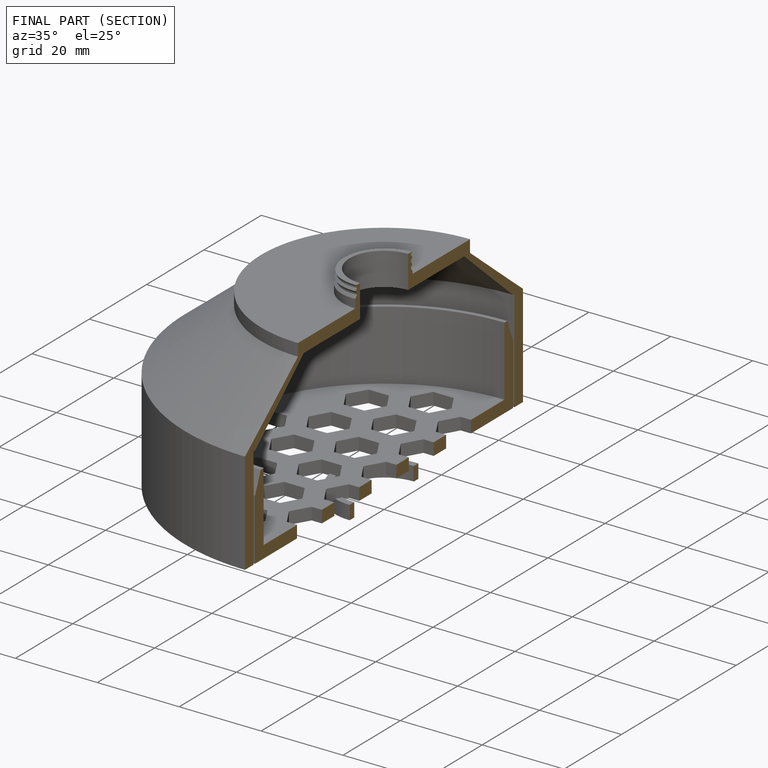
[diagram: finished part — half-section view (interior)]
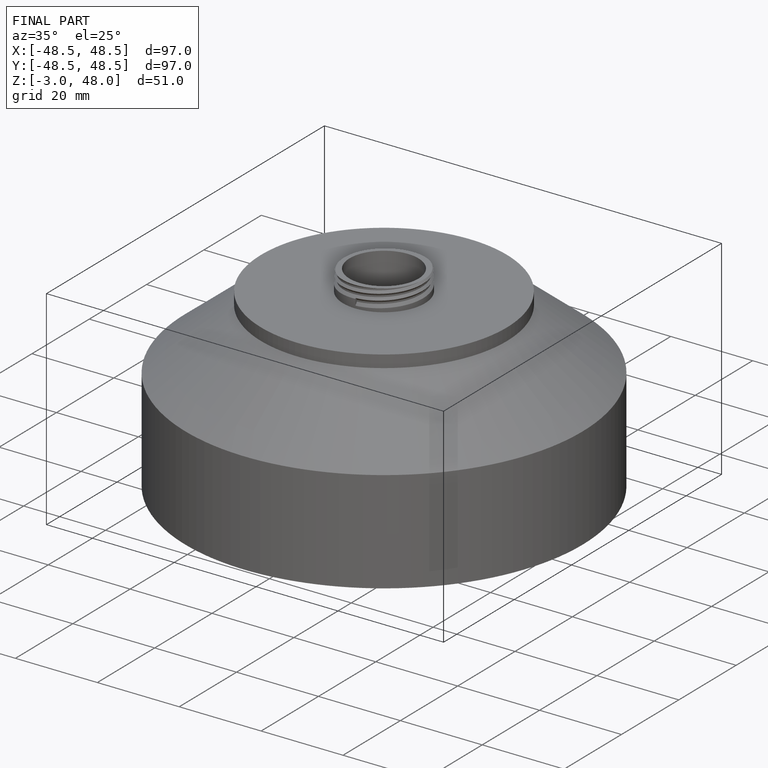
[diagram: finished part — iso view with bounding-box wireframe]
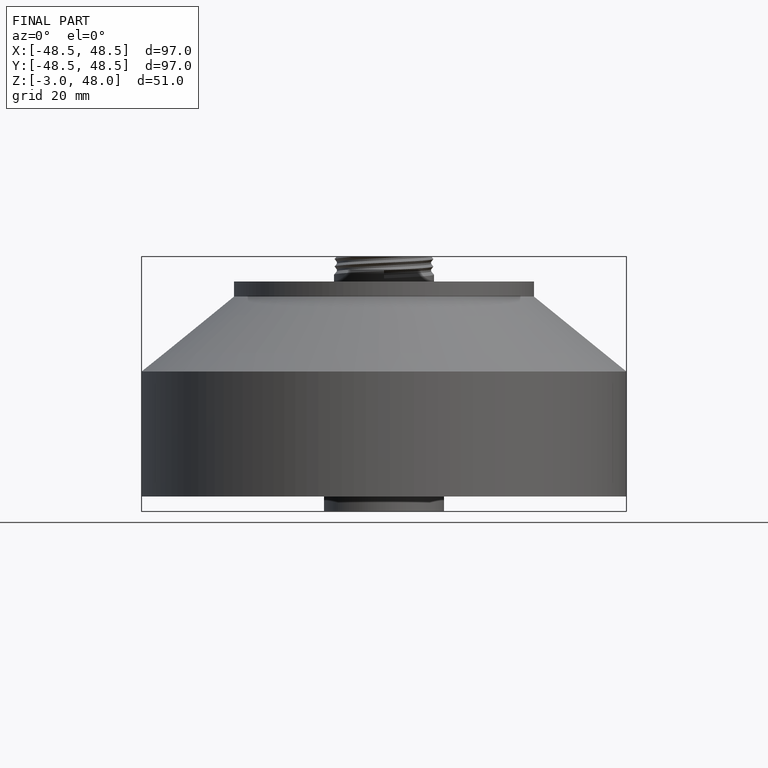
[diagram: finished part — front view with bounding-box wireframe]
